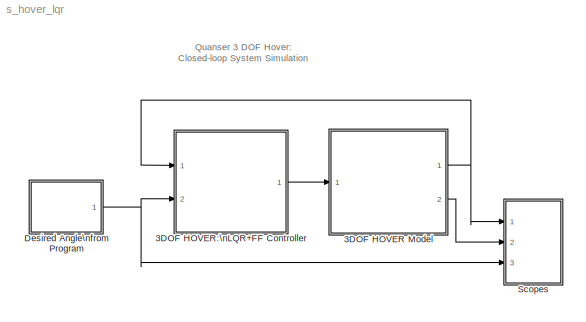
MODEL s_hover_lqr
KIND model
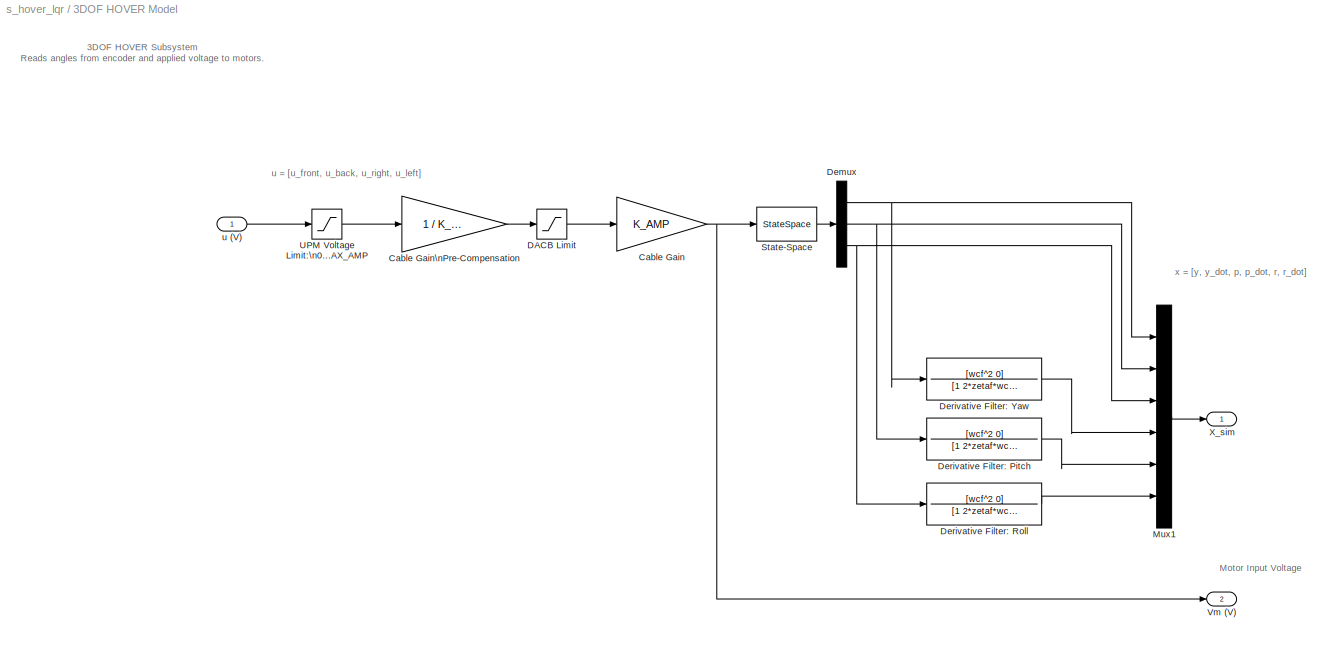
BLOCK [SubSystem] 3DOF HOVER Model
  FunctionWithSeparateData = off
  MaskHideContents = off
  MinAlgLoopOccurrences = off
  Ports = [1, 2]
  RTWSystemCode = Auto
BLOCK [Gain] 3DOF HOVER Model/Cable Gain
  Gain = K_AMP
  Multiplication = Matrix(K*u)
BLOCK [Gain] 3DOF HOVER Model/Cable Gain\nPre-Compensation
  Gain = 1 / K_AMP
  Multiplication = Matrix(K*u)
BLOCK [Saturate] 3DOF HOVER Model/DACB Limit
  LowerLimit = -VMAX_DAC
  UpperLimit = VMAX_DAC
BLOCK [Demux] 3DOF HOVER Model/Demux
  DisplayOption = bar
  Outputs = 3
  Ports = [1, 3]
BLOCK [TransferFcn] 3DOF HOVER Model/Derivative Filter: Pitch
  Denominator = [1 2*zetaf*wcf wcf^2]
  Numerator = [wcf^2 0]
BLOCK [TransferFcn] 3DOF HOVER Model/Derivative Filter: Roll
  Denominator = [1 2*zetaf*wcf wcf^2]
  Numerator = [wcf^2 0]
BLOCK [TransferFcn] 3DOF HOVER Model/Derivative Filter: Yaw
  Denominator = [1 2*zetaf*wcf wcf^2]
  Numerator = [wcf^2 0]
BLOCK [Mux] 3DOF HOVER Model/Mux1
  DisplayOption = bar
  Inputs = 6
  Ports = [6, 1]
BLOCK [StateSpace] 3DOF HOVER Model/State-Space
  A = A
  B = B
  C = C
  D = D
BLOCK [Saturate] 3DOF HOVER Model/UPM Voltage Limit:\n0 to VMAX_AMP
  LowerLimit = 0
  UpperLimit = VMAX_AMP
BLOCK [Outport] 3DOF HOVER Model/Vm (V)
  BusOutputAsStruct = off
  IconDisplay = Port number
  Port = 2
BLOCK [Outport] 3DOF HOVER Model/X_sim
  BusOutputAsStruct = off
  IconDisplay = Port number
BLOCK [Inport] 3DOF HOVER Model/u (V)
  IconDisplay = Port number
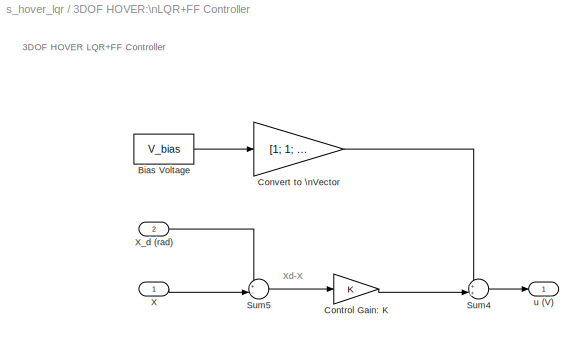
BLOCK [SubSystem] 3DOF HOVER:\nLQR+FF Controller
  FunctionWithSeparateData = off
  MaskHideContents = off
  MinAlgLoopOccurrences = off
  Ports = [2, 1]
  RTWSystemCode = Auto
BLOCK [Constant] 3DOF HOVER:\nLQR+FF Controller/Bias Voltage
  Value = V_bias
BLOCK [Gain] 3DOF HOVER:\nLQR+FF Controller/Control Gain: K
  Gain = K
  Multiplication = Matrix(K*u)
  OutDataTypeMode = Inherit via internal rule
  ParameterDataTypeMode = Inherit via internal rule
  SaturateOnIntegerOverflow = off
BLOCK [Gain] 3DOF HOVER:\nLQR+FF Controller/Convert to \nVector
  Gain = [1; 1; 1; 1]
  Multiplication = Matrix(K*u)
  OutDataTypeMode = Inherit via internal rule
  ParameterDataTypeMode = Inherit via internal rule
  SaturateOnIntegerOverflow = off
BLOCK [Sum] 3DOF HOVER:\nLQR+FF Controller/Sum4
  CollapseMode = All dimensions
  IconShape = round
  InputSameDT = off
  Inputs = ++|
  OutDataTypeMode = Inherit via internal rule
  Ports = [2, 1]
  SaturateOnIntegerOverflow = off
BLOCK [Sum] 3DOF HOVER:\nLQR+FF Controller/Sum5
  CollapseMode = All dimensions
  IconShape = round
  InputSameDT = off
  Inputs = +-|
  OutDataTypeMode = Inherit via internal rule
  Ports = [2, 1]
  SaturateOnIntegerOverflow = off
BLOCK [Inport] 3DOF HOVER:\nLQR+FF Controller/X
  IconDisplay = Port number
BLOCK [Inport] 3DOF HOVER:\nLQR+FF Controller/X_d (rad)
  IconDisplay = Port number
  Port = 2
BLOCK [Outport] 3DOF HOVER:\nLQR+FF Controller/u (V)
  BusOutputAsStruct = off
  IconDisplay = Port number
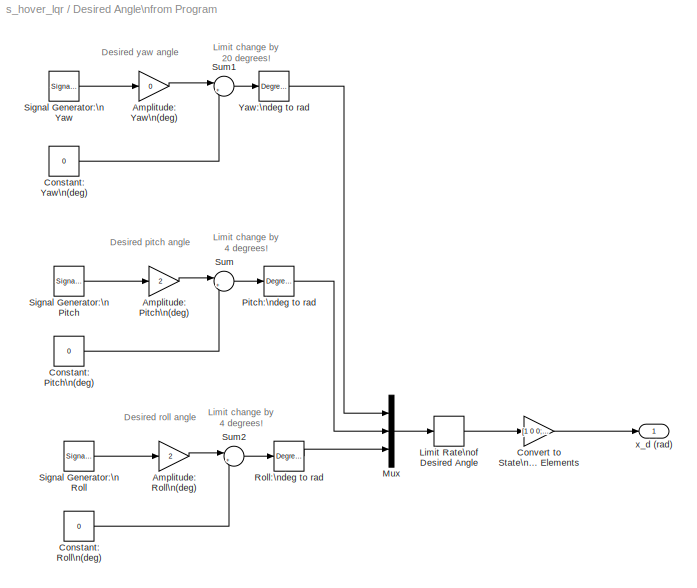
BLOCK [SubSystem] Desired Angle\nfrom Program
  FunctionWithSeparateData = off
  MaskHideContents = off
  MinAlgLoopOccurrences = off
  Ports = [0, 1]
  RTWSystemCode = Auto
BLOCK [Gain] Desired Angle\nfrom Program/Amplitude: Pitch\n(deg)
  Gain = 2
  OutDataTypeMode = Inherit via internal rule
  ParameterDataTypeMode = Inherit via internal rule
  SaturateOnIntegerOverflow = off
BLOCK [Gain] Desired Angle\nfrom Program/Amplitude: Roll\n(deg)
  Gain = 2
  OutDataTypeMode = Inherit via internal rule
  ParameterDataTypeMode = Inherit via internal rule
  SaturateOnIntegerOverflow = off
BLOCK [Gain] Desired Angle\nfrom Program/Amplitude: Yaw\n(deg)
  Gain = 0
  OutDataTypeMode = Inherit via internal rule
  ParameterDataTypeMode = Inherit via internal rule
  SaturateOnIntegerOverflow = off
BLOCK [Constant] Desired Angle\nfrom Program/Constant: Pitch\n(deg)
  Value = 0
BLOCK [Constant] Desired Angle\nfrom Program/Constant: Roll\n(deg)
  Value = 0
BLOCK [Constant] Desired Angle\nfrom Program/Constant: Yaw\n(deg)
  Value = 0
BLOCK [Gain] Desired Angle\nfrom Program/Convert to State\nwith 6 Elements
  Gain = [1 0 0; 0 1 0; 0 0 1; 0 0 0; 0 0 0; 0 0 0];
  Multiplication = Matrix(K*u)
  OutDataTypeMode = Inherit via internal rule
  ParameterDataTypeMode = Inherit via internal rule
  SaturateOnIntegerOverflow = off
BLOCK [RateLimiter] Desired Angle\nfrom Program/Limit Rate\nof Desired Angle
  FallingSlewLimit = -CMD_RATE_LIMIT
  RisingSlewLimit = CMD_RATE_LIMIT
BLOCK [Mux] Desired Angle\nfrom Program/Mux
  DisplayOption = bar
  Inputs = 3
  Ports = [3, 1]
BLOCK [Reference] Desired Angle\nfrom Program/Pitch:\ndeg to rad  REF=simulink_extras/Transformations/Degrees to\nRadians
  FunctionWithSeparateData = off
  Ports = [1, 1]
  RTWMemSecDataConstants = Inherit from model
  RTWMemSecDataInternal = Inherit from model
  RTWMemSecDataParameters = Inherit from model
  RTWMemSecFuncExecute = Inherit from model
  RTWMemSecFuncInitTerm = Inherit from model
  ShowPortLabels = FromPortIcon
  SourceBlock = simulink_extras/Transformations/Degrees to\nRadians
  SourceType = DegreesToRadians
  SystemSampleTime = -1
BLOCK [Reference] Desired Angle\nfrom Program/Roll:\ndeg to rad  REF=simulink_extras/Transformations/Degrees to\nRadians
  FunctionWithSeparateData = off
  Ports = [1, 1]
  RTWMemSecDataConstants = Inherit from model
  RTWMemSecDataInternal = Inherit from model
  RTWMemSecDataParameters = Inherit from model
  RTWMemSecFuncExecute = Inherit from model
  RTWMemSecFuncInitTerm = Inherit from model
  ShowPortLabels = FromPortIcon
  SourceBlock = simulink_extras/Transformations/Degrees to\nRadians
  SourceType = DegreesToRadians
  SystemSampleTime = -1
BLOCK [SignalGenerator] Desired Angle\nfrom Program/Signal Generator:\nPitch
  Frequency = 0.1
  Ports = [0, 1]
  WaveForm = square
BLOCK [SignalGenerator] Desired Angle\nfrom Program/Signal Generator:\nRoll
  Frequency = 0.08
  Ports = [0, 1]
  WaveForm = square
BLOCK [SignalGenerator] Desired Angle\nfrom Program/Signal Generator:\nYaw
  Frequency = 0.04
  Ports = [0, 1]
  WaveForm = square
BLOCK [Sum] Desired Angle\nfrom Program/Sum
  CollapseMode = All dimensions
  IconShape = round
  InputSameDT = off
  Inputs = |++
  OutDataTypeMode = Inherit via internal rule
  Ports = [2, 1]
  SaturateOnIntegerOverflow = off
BLOCK [Sum] Desired Angle\nfrom Program/Sum1
  CollapseMode = All dimensions
  IconShape = round
  InputSameDT = off
  Inputs = |++
  OutDataTypeMode = Inherit via internal rule
  Ports = [2, 1]
  SaturateOnIntegerOverflow = off
BLOCK [Sum] Desired Angle\nfrom Program/Sum2
  CollapseMode = All dimensions
  IconShape = round
  InputSameDT = off
  Inputs = |++
  OutDataTypeMode = Inherit via internal rule
  Ports = [2, 1]
  SaturateOnIntegerOverflow = off
BLOCK [Reference] Desired Angle\nfrom Program/Yaw:\ndeg to rad  REF=simulink_extras/Transformations/Degrees to\nRadians
  FunctionWithSeparateData = off
  Ports = [1, 1]
  RTWMemSecDataConstants = Inherit from model
  RTWMemSecDataInternal = Inherit from model
  RTWMemSecDataParameters = Inherit from model
  RTWMemSecFuncExecute = Inherit from model
  RTWMemSecFuncInitTerm = Inherit from model
  ShowPortLabels = FromPortIcon
  SourceBlock = simulink_extras/Transformations/Degrees to\nRadians
  SourceType = DegreesToRadians
  SystemSampleTime = -1
BLOCK [Outport] Desired Angle\nfrom Program/x_d (rad)
  BusOutputAsStruct = off
  IconDisplay = Port number
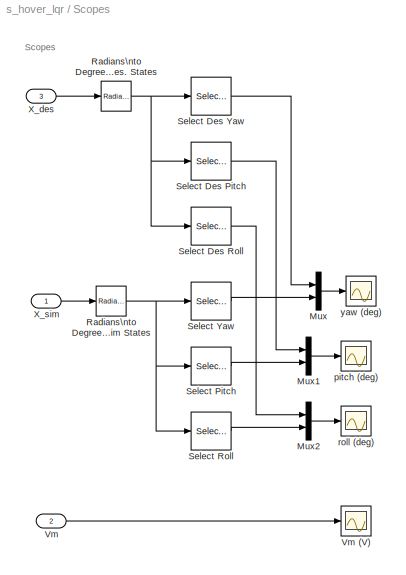
BLOCK [SubSystem] Scopes
  FunctionWithSeparateData = off
  MaskHideContents = off
  MinAlgLoopOccurrences = off
  Ports = [3]
  RTWSystemCode = Auto
BLOCK [Mux] Scopes/Mux
  DisplayOption = bar
  Inputs = 2
  Ports = [2, 1]
BLOCK [Mux] Scopes/Mux1
  DisplayOption = bar
  Inputs = 2
  Ports = [2, 1]
BLOCK [Mux] Scopes/Mux2
  DisplayOption = bar
  Inputs = 2
  Ports = [2, 1]
BLOCK [Reference] Scopes/Radians\nto Degrees -\nDes. States  REF=simulink_extras/Transformations/Radians\nto Degrees
  FunctionWithSeparateData = off
  Ports = [1, 1]
  RTWMemSecDataConstants = Inherit from model
  RTWMemSecDataInternal = Inherit from model
  RTWMemSecDataParameters = Inherit from model
  RTWMemSecFuncExecute = Inherit from model
  RTWMemSecFuncInitTerm = Inherit from model
  ShowPortLabels = FromPortIcon
  SourceBlock = simulink_extras/Transformations/Radians\nto Degrees
  SourceType = RadiansToDegrees
  SystemSampleTime = -1
BLOCK [Reference] Scopes/Radians\nto Degrees -\nSim States  REF=simulink_extras/Transformations/Radians\nto Degrees
  FunctionWithSeparateData = off
  Ports = [1, 1]
  RTWMemSecDataConstants = Inherit from model
  RTWMemSecDataInternal = Inherit from model
  RTWMemSecDataParameters = Inherit from model
  RTWMemSecFuncExecute = Inherit from model
  RTWMemSecFuncInitTerm = Inherit from model
  ShowPortLabels = FromPortIcon
  SourceBlock = simulink_extras/Transformations/Radians\nto Degrees
  SourceType = RadiansToDegrees
  SystemSampleTime = -1
BLOCK [Selector] Scopes/Select Des Pitch
  IndexOptions = Index vector (dialog)
  Indices = 2
  InputPortWidth = 6
  OutputSizes = 1
  Ports = [1, 1]
BLOCK [Selector] Scopes/Select Des Roll
  IndexOptions = Index vector (dialog)
  Indices = 3
  InputPortWidth = 6
  OutputSizes = 1
  Ports = [1, 1]
BLOCK [Selector] Scopes/Select Des Yaw
  IndexOptions = Index vector (dialog)
  Indices = 1
  InputPortWidth = 6
  OutputSizes = 1
  Ports = [1, 1]
BLOCK [Selector] Scopes/Select Pitch
  IndexOptions = Index vector (dialog)
  Indices = 2
  InputPortWidth = 6
  OutputSizes = 1
  Ports = [1, 1]
BLOCK [Selector] Scopes/Select Roll
  IndexOptions = Index vector (dialog)
  Indices = 3
  InputPortWidth = 6
  OutputSizes = 1
  Ports = [1, 1]
BLOCK [Selector] Scopes/Select Yaw
  IndexOptions = Index vector (dialog)
  Indices = 1
  InputPortWidth = 6
  OutputSizes = 1
  Ports = [1, 1]
BLOCK [Inport] Scopes/Vm
  IconDisplay = Port number
  Port = 2
BLOCK [Scope] Scopes/Vm (V)
  DataFormat = Array
  Floating = off
  LimitDataPoints = off
  NumInputPorts = 1
  Ports = [1]
  SampleTime = 0
  SaveName = ScopeData4
  TickLabels = on
  TimeRange = 20
  YMax = 15
  YMin = -15
BLOCK [Inport] Scopes/X_des
  IconDisplay = Port number
  Port = 3
BLOCK [Inport] Scopes/X_sim
  IconDisplay = Port number
BLOCK [Scope] Scopes/pitch (deg)
  DataFormat = Array
  Floating = off
  LimitDataPoints = off
  NumInputPorts = 1
  Ports = [1]
  SampleTime = 0
  SaveName = ScopeData1
  TickLabels = on
  TimeRange = 20
  YMax = 2.5
  YMin = -2.5
BLOCK [Scope] Scopes/roll  (deg)
  DataFormat = Array
  Floating = off
  LimitDataPoints = off
  NumInputPorts = 1
  Ports = [1]
  SampleTime = 0
  SaveName = ScopeData2
  TickLabels = on
  TimeRange = 20
BLOCK [Scope] Scopes/yaw (deg)
  DataFormat = Array
  Floating = off
  LimitDataPoints = off
  NumInputPorts = 1
  Ports = [1]
  SampleTime = 0
  TickLabels = on
  TimeRange = 20
  YMax = 15
  YMin = -15
ANNOTATION (root): Quanser 3 DOF Hover:\nClosed-loop System Simulation
ANNOTATION 3DOF HOVER Model: 3DOF HOVER Subsystem\nReads angles from encoder and applied voltage to motors.
ANNOTATION 3DOF HOVER Model: Motor Input Voltage
ANNOTATION 3DOF HOVER Model: u = [u_front, u_back, u_right, u_left]
ANNOTATION 3DOF HOVER Model: x = [y, y_dot, p, p_dot, r, r_dot]
ANNOTATION 3DOF HOVER:\nLQR+FF Controller: 3DOF HOVER LQR+FF Controller
ANNOTATION 3DOF HOVER:\nLQR+FF Controller: Xd-X
ANNOTATION Desired Angle\nfrom Program: Desired pitch angle
ANNOTATION Desired Angle\nfrom Program: Desired roll angle
ANNOTATION Desired Angle\nfrom Program: Desired yaw angle
ANNOTATION Desired Angle\nfrom Program: Limit change by \n20 degrees!
ANNOTATION Desired Angle\nfrom Program: Limit change by \n4 degrees!
ANNOTATION Scopes: Scopes
NET 3DOF HOVER Model/Cable Gain:1 -> 3DOF HOVER Model/State-Space:1, 3DOF HOVER Model/Vm (V):1
LINE 3DOF HOVER Model/Cable Gain\nPre-Compensation:1 -> 3DOF HOVER Model/DACB Limit:1
LINE 3DOF HOVER Model/DACB Limit:1 -> 3DOF HOVER Model/Cable Gain:1
NET 3DOF HOVER Model/Demux:1 -> 3DOF HOVER Model/Derivative Filter: Yaw:1, 3DOF HOVER Model/Mux1:1
NET 3DOF HOVER Model/Demux:2 -> 3DOF HOVER Model/Derivative Filter: Pitch:1, 3DOF HOVER Model/Mux1:2
NET 3DOF HOVER Model/Demux:3 -> 3DOF HOVER Model/Derivative Filter: Roll:1, 3DOF HOVER Model/Mux1:3
LINE 3DOF HOVER Model/Derivative Filter: Pitch:1 -> 3DOF HOVER Model/Mux1:5
LINE 3DOF HOVER Model/Derivative Filter: Roll:1 -> 3DOF HOVER Model/Mux1:6
LINE 3DOF HOVER Model/Derivative Filter: Yaw:1 -> 3DOF HOVER Model/Mux1:4
LINE 3DOF HOVER Model/Mux1:1 -> 3DOF HOVER Model/X_sim:1
LINE 3DOF HOVER Model/State-Space:1 -> 3DOF HOVER Model/Demux:1
LINE 3DOF HOVER Model/UPM Voltage Limit:\n0 to VMAX_AMP:1 -> 3DOF HOVER Model/Cable Gain\nPre-Compensation:1
LINE 3DOF HOVER Model/u (V):1 -> 3DOF HOVER Model/UPM Voltage Limit:\n0 to VMAX_AMP:1
NET 3DOF HOVER Model:1 -> 3DOF HOVER:\nLQR+FF Controller:1, Scopes:1
LINE 3DOF HOVER Model:2 -> Scopes:2
LINE 3DOF HOVER:\nLQR+FF Controller/Bias Voltage:1 -> 3DOF HOVER:\nLQR+FF Controller/Convert to \nVector:1
LINE 3DOF HOVER:\nLQR+FF Controller/Control Gain: K:1 -> 3DOF HOVER:\nLQR+FF Controller/Sum4:2
LINE 3DOF HOVER:\nLQR+FF Controller/Convert to \nVector:1 -> 3DOF HOVER:\nLQR+FF Controller/Sum4:1
LINE 3DOF HOVER:\nLQR+FF Controller/Sum4:1 -> 3DOF HOVER:\nLQR+FF Controller/u (V):1
LINE 3DOF HOVER:\nLQR+FF Controller/Sum5:1 -> 3DOF HOVER:\nLQR+FF Controller/Control Gain: K:1
LINE 3DOF HOVER:\nLQR+FF Controller/X:1 -> 3DOF HOVER:\nLQR+FF Controller/Sum5:2
LINE 3DOF HOVER:\nLQR+FF Controller/X_d (rad):1 -> 3DOF HOVER:\nLQR+FF Controller/Sum5:1
LINE 3DOF HOVER:\nLQR+FF Controller:1 -> 3DOF HOVER Model:1
LINE Desired Angle\nfrom Program/Amplitude: Pitch\n(deg):1 -> Desired Angle\nfrom Program/Sum:1
LINE Desired Angle\nfrom Program/Amplitude: Roll\n(deg):1 -> Desired Angle\nfrom Program/Sum2:1
LINE Desired Angle\nfrom Program/Amplitude: Yaw\n(deg):1 -> Desired Angle\nfrom Program/Sum1:1
LINE Desired Angle\nfrom Program/Constant: Pitch\n(deg):1 -> Desired Angle\nfrom Program/Sum:2
LINE Desired Angle\nfrom Program/Constant: Roll\n(deg):1 -> Desired Angle\nfrom Program/Sum2:2
LINE Desired Angle\nfrom Program/Constant: Yaw\n(deg):1 -> Desired Angle\nfrom Program/Sum1:2
LINE Desired Angle\nfrom Program/Convert to State\nwith 6 Elements:1 -> Desired Angle\nfrom Program/x_d (rad):1
LINE Desired Angle\nfrom Program/Limit Rate\nof Desired Angle:1 -> Desired Angle\nfrom Program/Convert to State\nwith 6 Elements:1
LINE Desired Angle\nfrom Program/Mux:1 -> Desired Angle\nfrom Program/Limit Rate\nof Desired Angle:1
LINE Desired Angle\nfrom Program/Pitch:\ndeg to rad:1 -> Desired Angle\nfrom Program/Mux:2
LINE Desired Angle\nfrom Program/Roll:\ndeg to rad:1 -> Desired Angle\nfrom Program/Mux:3
LINE Desired Angle\nfrom Program/Signal Generator:\nPitch:1 -> Desired Angle\nfrom Program/Amplitude: Pitch\n(deg):1
LINE Desired Angle\nfrom Program/Signal Generator:\nRoll:1 -> Desired Angle\nfrom Program/Amplitude: Roll\n(deg):1
LINE Desired Angle\nfrom Program/Signal Generator:\nYaw:1 -> Desired Angle\nfrom Program/Amplitude: Yaw\n(deg):1
LINE Desired Angle\nfrom Program/Sum1:1 -> Desired Angle\nfrom Program/Yaw:\ndeg to rad:1
LINE Desired Angle\nfrom Program/Sum2:1 -> Desired Angle\nfrom Program/Roll:\ndeg to rad:1
LINE Desired Angle\nfrom Program/Sum:1 -> Desired Angle\nfrom Program/Pitch:\ndeg to rad:1
LINE Desired Angle\nfrom Program/Yaw:\ndeg to rad:1 -> Desired Angle\nfrom Program/Mux:1
NET Desired Angle\nfrom Program:1 -> 3DOF HOVER:\nLQR+FF Controller:2, Scopes:3
LINE Scopes/Mux1:1 -> Scopes/pitch (deg):1
LINE Scopes/Mux2:1 -> Scopes/roll  (deg):1
LINE Scopes/Mux:1 -> Scopes/yaw (deg):1
NET Scopes/Radians\nto Degrees -\nDes. States:1 -> Scopes/Select Des Pitch:1, Scopes/Select Des Roll:1, Scopes/Select Des Yaw:1
NET Scopes/Radians\nto Degrees -\nSim States:1 -> Scopes/Select Pitch:1, Scopes/Select Roll:1, Scopes/Select Yaw:1
LINE Scopes/Select Des Pitch:1 -> Scopes/Mux1:1
LINE Scopes/Select Des Roll:1 -> Scopes/Mux2:1
LINE Scopes/Select Des Yaw:1 -> Scopes/Mux:1
LINE Scopes/Select Pitch:1 -> Scopes/Mux1:2
LINE Scopes/Select Roll:1 -> Scopes/Mux2:2
LINE Scopes/Select Yaw:1 -> Scopes/Mux:2
LINE Scopes/Vm:1 -> Scopes/Vm (V):1
LINE Scopes/X_des:1 -> Scopes/Radians\nto Degrees -\nDes. States:1
LINE Scopes/X_sim:1 -> Scopes/Radians\nto Degrees -\nSim States:1
note: NET lines group one-source signal fan-out (src -> all destinations, sorted); 1:1 wires keep LINE
